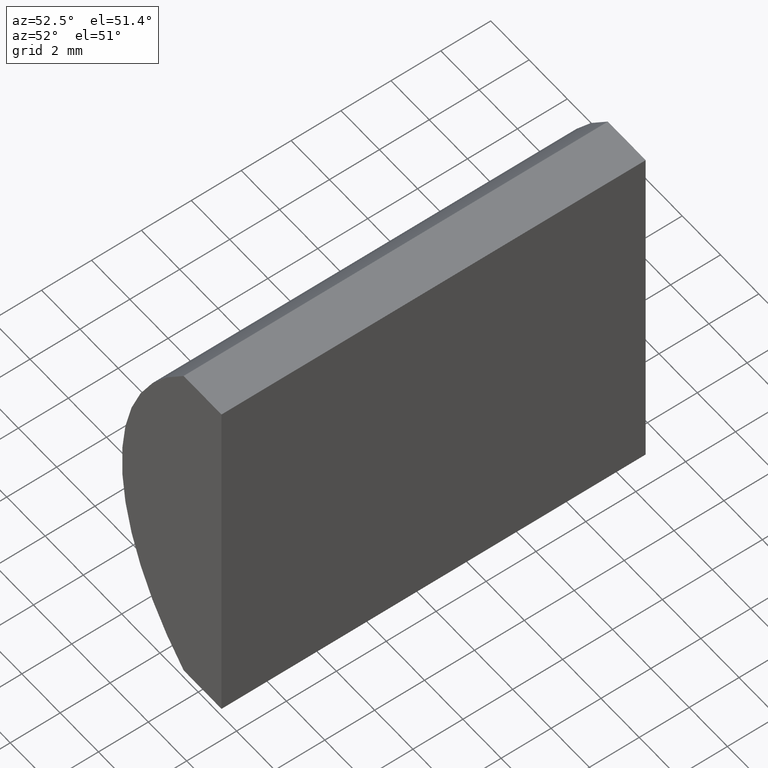
[diagram: clean part render]
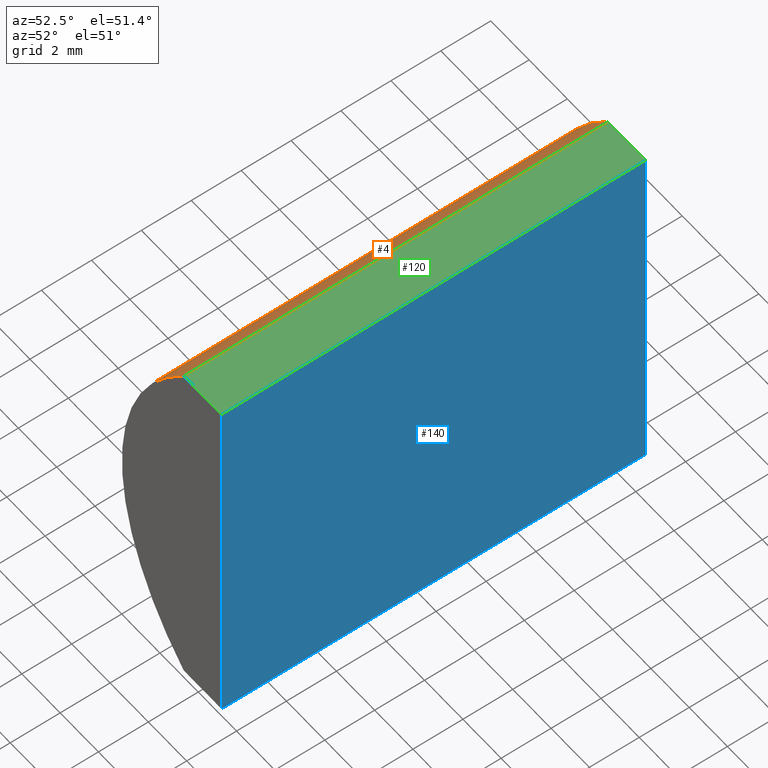
[diagram: same view with three faces highlighted in distinct colors, each labeled with its STEP entity id]
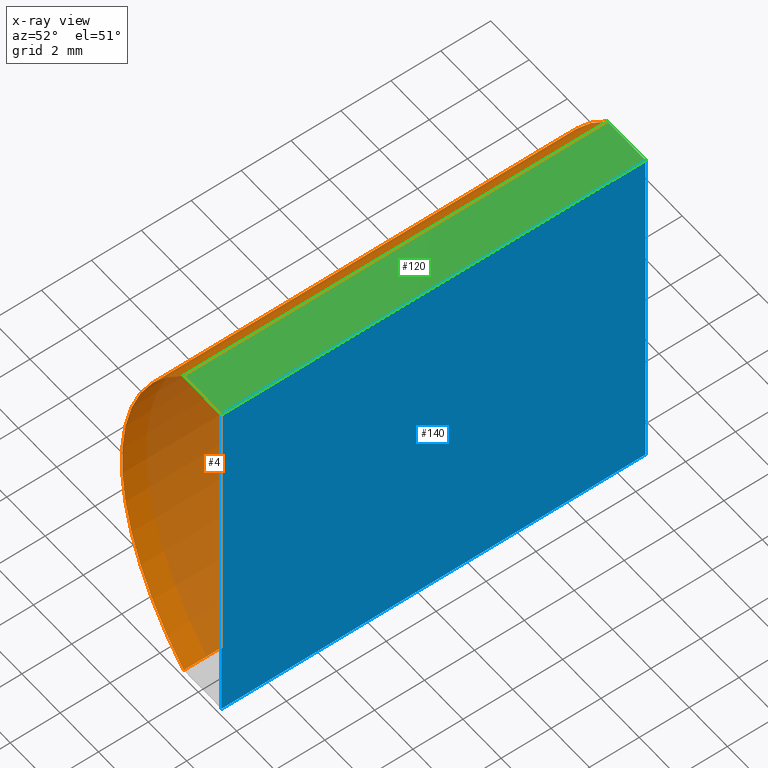
[diagram: x-ray of the same camera — body ghosted, the three highlighted faces saturated]
A machine part, auxiliary view with three faces highlighted in distinct colors.
The next image is the same camera in x-ray (body ghosted, the three faces saturated) — at least one of them is partly hidden behind the body in this view.
Their STEP definitions:

[orange] entity #4 — the highlighted cylindrical surface (partial cylindrical patch) has radius 10.34 mm, axis along (-0, -1, -0).
#2 = EDGE_LOOP ( 'NONE', ( #169, #146, #159, #126 ) ) ;
#4 = ADVANCED_FACE ( 'NONE', ( #118 ), #129, .T. ) ;
#12 = VERTEX_POINT ( 'NONE', #149 ) ;
#22 = CARTESIAN_POINT ( 'NONE',  ( -2.762772905910325900, 17.00000000000000000, 7.500000000000000000 ) ) ;
#23 = CARTESIAN_POINT ( 'NONE',  ( 4.355204334851265500, 0.0000000000000000000, 4.286263797015675000E-017 ) ) ;
#27 = CARTESIAN_POINT ( 'NONE',  ( -2.762772905910325900, 17.00000000000000000, -7.500000000000000000 ) ) ;
#42 = VECTOR ( 'NONE', #203, 1000.000000000000000 ) ;
#64 = CARTESIAN_POINT ( 'NONE',  ( -2.762772905910325900, 0.0000000000000000000, -7.500000000000000000 ) ) ;
#68 = EDGE_CURVE ( 'NONE', #82, #12, #86, .T. ) ;
#71 = EDGE_CURVE ( 'NONE', #76, #12, #107, .T. ) ;
#72 = DIRECTION ( 'NONE',  ( 0.0000000000000000000, 0.0000000000000000000, -1.000000000000000000 ) ) ;
#76 = VERTEX_POINT ( 'NONE', #85 ) ;
#82 = VERTEX_POINT ( 'NONE', #64 ) ;
#83 = AXIS2_PLACEMENT_3D ( 'NONE', #23, #164, #102 ) ;
#85 = CARTESIAN_POINT ( 'NONE',  ( -2.762772905910325900, 17.00000000000000000, 7.500000000000000000 ) ) ;
#86 = CIRCLE ( 'NONE', #83, 10.34000000000000000 ) ;
#102 = DIRECTION ( 'NONE',  ( 0.0000000000000000000, 0.0000000000000000000, 1.000000000000000000 ) ) ;
#106 = DIRECTION ( 'NONE',  ( -0.0000000000000000000, -1.000000000000000000, -0.0000000000000000000 ) ) ;
#107 = LINE ( 'NONE', #22, #42 ) ;
#109 = CARTESIAN_POINT ( 'NONE',  ( 4.355204334851265500, 17.00000000000000000, 4.286263797015675000E-017 ) ) ;
#116 = AXIS2_PLACEMENT_3D ( 'NONE', #109, #135, #151 ) ;
#118 = FACE_OUTER_BOUND ( 'NONE', #2, .T. ) ;
#122 = CIRCLE ( 'NONE', #116, 10.34000000000000000 ) ;
#126 = ORIENTED_EDGE ( 'NONE', *, *, #150, .T. ) ;
#128 = LINE ( 'NONE', #27, #134 ) ;
#129 = CYLINDRICAL_SURFACE ( 'NONE', #176, 10.34000000000000000 ) ;
#131 = EDGE_CURVE ( 'NONE', #181, #76, #122, .T. ) ;
#134 = VECTOR ( 'NONE', #106, 1000.000000000000000 ) ;
#135 = DIRECTION ( 'NONE',  ( 0.0000000000000000000, 1.000000000000000000, 0.0000000000000000000 ) ) ;
#142 = CARTESIAN_POINT ( 'NONE',  ( -2.762772905910325900, 17.00000000000000000, -7.500000000000000000 ) ) ;
#145 = CARTESIAN_POINT ( 'NONE',  ( 4.355204334851265500, 17.00000000000000000, 4.286263797015675000E-017 ) ) ;
#146 = ORIENTED_EDGE ( 'NONE', *, *, #71, .F. ) ;
#149 = CARTESIAN_POINT ( 'NONE',  ( -2.762772905910325900, 0.0000000000000000000, 7.500000000000000000 ) ) ;
#150 = EDGE_CURVE ( 'NONE', #181, #82, #128, .T. ) ;
#151 = DIRECTION ( 'NONE',  ( 0.0000000000000000000, 0.0000000000000000000, 1.000000000000000000 ) ) ;
#159 = ORIENTED_EDGE ( 'NONE', *, *, #131, .F. ) ;
#164 = DIRECTION ( 'NONE',  ( 0.0000000000000000000, 1.000000000000000000, 0.0000000000000000000 ) ) ;
#169 = ORIENTED_EDGE ( 'NONE', *, *, #68, .T. ) ;
#176 = AXIS2_PLACEMENT_3D ( 'NONE', #145, #178, #72 ) ;
#178 = DIRECTION ( 'NONE',  ( -0.0000000000000000000, -1.000000000000000000, -0.0000000000000000000 ) ) ;
#181 = VERTEX_POINT ( 'NONE', #142 ) ;
#203 = DIRECTION ( 'NONE',  ( -0.0000000000000000000, -1.000000000000000000, -0.0000000000000000000 ) ) ;

[blue] entity #140 — the highlighted planar face has unit normal (-1, 0, 0).
#1 = VECTOR ( 'NONE', #148, 1000.000000000000000 ) ;
#8 = FACE_OUTER_BOUND ( 'NONE', #138, .T. ) ;
#11 = EDGE_CURVE ( 'NONE', #115, #194, #108, .T. ) ;
#14 = VECTOR ( 'NONE', #84, 1000.000000000000000 ) ;
#19 = DIRECTION ( 'NONE',  ( -3.469446951953612200E-016, -0.0000000000000000000, -1.000000000000000000 ) ) ;
#21 = EDGE_CURVE ( 'NONE', #77, #115, #198, .T. ) ;
#28 = DIRECTION ( 'NONE',  ( -1.000000000000000000, 0.0000000000000000000, 3.469446951953612200E-016 ) ) ;
#32 = ORIENTED_EDGE ( 'NONE', *, *, #180, .T. ) ;
#34 = AXIS2_PLACEMENT_3D ( 'NONE', #191, #28, #92 ) ;
#50 = LINE ( 'NONE', #124, #99 ) ;
#60 = VERTEX_POINT ( 'NONE', #161 ) ;
#66 = CARTESIAN_POINT ( 'NONE',  ( -0.7847956651487412200, 17.00000000000000000, -7.500000000000008000 ) ) ;
#75 = VECTOR ( 'NONE', #200, 1000.000000000000000 ) ;
#77 = VERTEX_POINT ( 'NONE', #163 ) ;
#84 = DIRECTION ( 'NONE',  ( -0.0000000000000000000, -1.000000000000000000, -0.0000000000000000000 ) ) ;
#92 = DIRECTION ( 'NONE',  ( 3.469446951953612200E-016, 0.0000000000000000000, 1.000000000000000000 ) ) ;
#99 = VECTOR ( 'NONE', #19, 1000.000000000000000 ) ;
#108 = LINE ( 'NONE', #182, #75 ) ;
#115 = VERTEX_POINT ( 'NONE', #174 ) ;
#124 = CARTESIAN_POINT ( 'NONE',  ( -0.7847956651487412200, 0.0000000000000000000, -7.500000000000008000 ) ) ;
#138 = EDGE_LOOP ( 'NONE', ( #204, #154, #193, #32 ) ) ;
#140 = ADVANCED_FACE ( 'NONE', ( #8 ), #158, .F. ) ;
#148 = DIRECTION ( 'NONE',  ( -3.469446951953612200E-016, -0.0000000000000000000, -1.000000000000000000 ) ) ;
#153 = CARTESIAN_POINT ( 'NONE',  ( -0.7847956651487360000, 17.00000000000000000, 7.500000000000000000 ) ) ;
#154 = ORIENTED_EDGE ( 'NONE', *, *, #11, .F. ) ;
#158 = PLANE ( 'NONE',  #34 ) ;
#161 = CARTESIAN_POINT ( 'NONE',  ( -0.7847956651487360000, 0.0000000000000000000, 7.500000000000000000 ) ) ;
#163 = CARTESIAN_POINT ( 'NONE',  ( -0.7847956651487360000, 17.00000000000000000, 7.500000000000000000 ) ) ;
#171 = EDGE_CURVE ( 'NONE', #60, #194, #50, .T. ) ;
#174 = CARTESIAN_POINT ( 'NONE',  ( -0.7847956651487412200, 17.00000000000000000, -7.500000000000008000 ) ) ;
#175 = CARTESIAN_POINT ( 'NONE',  ( -0.7847956651487412200, 0.0000000000000000000, -7.500000000000008000 ) ) ;
#180 = EDGE_CURVE ( 'NONE', #77, #60, #192, .T. ) ;
#182 = CARTESIAN_POINT ( 'NONE',  ( -0.7847956651487412200, 17.00000000000000000, -7.500000000000008000 ) ) ;
#191 = CARTESIAN_POINT ( 'NONE',  ( -0.7847956651487412200, 17.00000000000000000, -7.500000000000008000 ) ) ;
#192 = LINE ( 'NONE', #153, #14 ) ;
#193 = ORIENTED_EDGE ( 'NONE', *, *, #21, .F. ) ;
#194 = VERTEX_POINT ( 'NONE', #175 ) ;
#198 = LINE ( 'NONE', #66, #1 ) ;
#200 = DIRECTION ( 'NONE',  ( -0.0000000000000000000, -1.000000000000000000, -0.0000000000000000000 ) ) ;
#204 = ORIENTED_EDGE ( 'NONE', *, *, #171, .T. ) ;

[green] entity #120 — the highlighted planar face has unit normal (0, 0, -1).
#7 = CARTESIAN_POINT ( 'NONE',  ( -2.762772905910325900, 0.0000000000000000000, 7.500000000000000000 ) ) ;
#10 = ORIENTED_EDGE ( 'NONE', *, *, #71, .T. ) ;
#12 = VERTEX_POINT ( 'NONE', #149 ) ;
#14 = VECTOR ( 'NONE', #84, 1000.000000000000000 ) ;
#22 = CARTESIAN_POINT ( 'NONE',  ( -2.762772905910325900, 17.00000000000000000, 7.500000000000000000 ) ) ;
#29 = LINE ( 'NONE', #7, #65 ) ;
#38 = ORIENTED_EDGE ( 'NONE', *, *, #79, .T. ) ;
#41 = CARTESIAN_POINT ( 'NONE',  ( -2.762772905910325900, 17.00000000000000000, 7.500000000000000000 ) ) ;
#42 = VECTOR ( 'NONE', #203, 1000.000000000000000 ) ;
#49 = DIRECTION ( 'NONE',  ( 0.0000000000000000000, 0.0000000000000000000, -1.000000000000000000 ) ) ;
#51 = ORIENTED_EDGE ( 'NONE', *, *, #119, .F. ) ;
#60 = VERTEX_POINT ( 'NONE', #161 ) ;
#65 = VECTOR ( 'NONE', #73, 1000.000000000000000 ) ;
#71 = EDGE_CURVE ( 'NONE', #76, #12, #107, .T. ) ;
#73 = DIRECTION ( 'NONE',  ( 1.000000000000000000, 0.0000000000000000000, 0.0000000000000000000 ) ) ;
#76 = VERTEX_POINT ( 'NONE', #85 ) ;
#77 = VERTEX_POINT ( 'NONE', #163 ) ;
#79 = EDGE_CURVE ( 'NONE', #12, #60, #29, .T. ) ;
#84 = DIRECTION ( 'NONE',  ( -0.0000000000000000000, -1.000000000000000000, -0.0000000000000000000 ) ) ;
#85 = CARTESIAN_POINT ( 'NONE',  ( -2.762772905910325900, 17.00000000000000000, 7.500000000000000000 ) ) ;
#89 = CARTESIAN_POINT ( 'NONE',  ( -2.762772905910325900, 17.00000000000000000, 7.500000000000000000 ) ) ;
#90 = VECTOR ( 'NONE', #139, 1000.000000000000000 ) ;
#95 = FACE_OUTER_BOUND ( 'NONE', #101, .T. ) ;
#101 = EDGE_LOOP ( 'NONE', ( #38, #123, #51, #10 ) ) ;
#107 = LINE ( 'NONE', #22, #42 ) ;
#110 = LINE ( 'NONE', #89, #90 ) ;
#119 = EDGE_CURVE ( 'NONE', #76, #77, #110, .T. ) ;
#120 = ADVANCED_FACE ( 'NONE', ( #95 ), #177, .F. ) ;
#123 = ORIENTED_EDGE ( 'NONE', *, *, #180, .F. ) ;
#125 = DIRECTION ( 'NONE',  ( -1.000000000000000000, 0.0000000000000000000, -0.0000000000000000000 ) ) ;
#139 = DIRECTION ( 'NONE',  ( 1.000000000000000000, 0.0000000000000000000, 0.0000000000000000000 ) ) ;
#141 = AXIS2_PLACEMENT_3D ( 'NONE', #41, #49, #125 ) ;
#149 = CARTESIAN_POINT ( 'NONE',  ( -2.762772905910325900, 0.0000000000000000000, 7.500000000000000000 ) ) ;
#153 = CARTESIAN_POINT ( 'NONE',  ( -0.7847956651487360000, 17.00000000000000000, 7.500000000000000000 ) ) ;
#161 = CARTESIAN_POINT ( 'NONE',  ( -0.7847956651487360000, 0.0000000000000000000, 7.500000000000000000 ) ) ;
#163 = CARTESIAN_POINT ( 'NONE',  ( -0.7847956651487360000, 17.00000000000000000, 7.500000000000000000 ) ) ;
#177 = PLANE ( 'NONE',  #141 ) ;
#180 = EDGE_CURVE ( 'NONE', #77, #60, #192, .T. ) ;
#192 = LINE ( 'NONE', #153, #14 ) ;
#203 = DIRECTION ( 'NONE',  ( -0.0000000000000000000, -1.000000000000000000, -0.0000000000000000000 ) ) ;